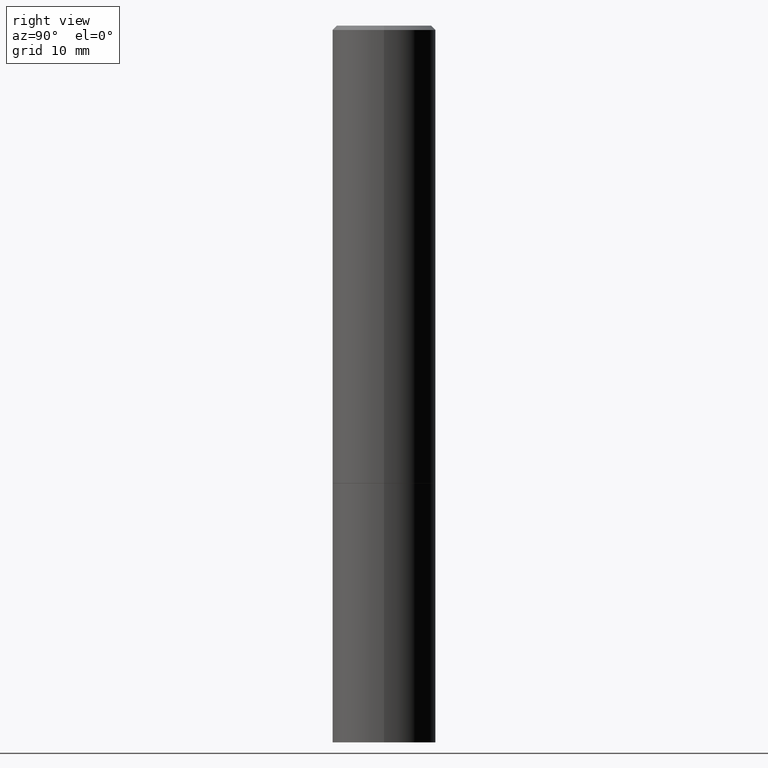
[diagram: clean part render]
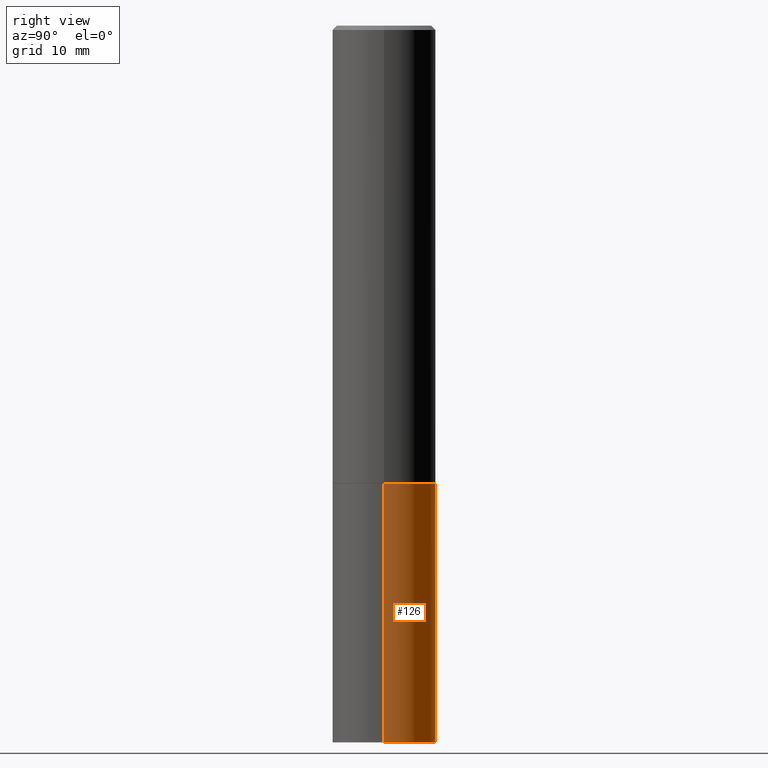
[diagram: same view with one face highlighted and labeled with its STEP entity id]
A machine part, right view. The second image highlights one B-rep face of the part: STEP entity #126.
In plain terms, the highlighted cylindrical surface (partial cylindrical patch) has radius 5.9995 mm, axis along (-0, 0, 1).
Its self-contained STEP definition (entity closure, byte-faithful):
#7 = DIRECTION ( 'NONE',  ( -2.445468806185136597E-29, 3.491481338843145583E-15, 1.000000000000000000 ) ) ;
#16 = EDGE_CURVE ( 'NONE', #168, #110, #140, .T. ) ;
#27 = CIRCLE ( 'NONE', #102, 0.2361999999999999933 ) ;
#38 = CYLINDRICAL_SURFACE ( 'NONE', #323, 0.2361999999999999933 ) ;
#42 = CARTESIAN_POINT ( 'NONE',  ( -0.2361999999999999933, -7.668917324418570534E-15, -3.267700000000000049 ) ) ;
#44 = EDGE_CURVE ( 'NONE', #73, #236, #169, .T. ) ;
#51 = ORIENTED_EDGE ( 'NONE', *, *, #44, .F. ) ;
#60 = CARTESIAN_POINT ( 'NONE',  ( 7.991058417971171713E-29, -1.140911357093774644E-14, -3.267700000000000049 ) ) ;
#64 = CARTESIAN_POINT ( 'NONE',  ( -0.2361999999999999933, 1.678301941865356591E-15, -1.161852468318208757E-29 ) ) ;
#68 = CARTESIAN_POINT ( 'NONE',  ( 5.102715210985906276E-29, -7.285324961630107416E-15, -2.086600000000000232 ) ) ;
#72 = DIRECTION ( 'NONE',  ( 1.000000000000000000, -6.982962677686265133E-15, 0.000000000000000000 ) ) ;
#73 = VERTEX_POINT ( 'NONE', #285 ) ;
#82 = DIRECTION ( 'NONE',  ( -2.445468806185136877E-29, 3.491481338843145188E-15, 1.000000000000000000 ) ) ;
#84 = CARTESIAN_POINT ( 'NONE',  ( -0.2361999999999999933, -7.668917324418570534E-15, -2.086600000000000232 ) ) ;
#87 = ORIENTED_EDGE ( 'NONE', *, *, #150, .T. ) ;
#102 = AXIS2_PLACEMENT_3D ( 'NONE', #68, #241, #247 ) ;
#108 = AXIS2_PLACEMENT_3D ( 'NONE', #60, #7, #72 ) ;
#110 = VERTEX_POINT ( 'NONE', #84 ) ;
#112 = ORIENTED_EDGE ( 'NONE', *, *, #355, .F. ) ;
#126 = ADVANCED_FACE ( 'NONE', ( #343 ), #38, .T. ) ;
#140 = LINE ( 'NONE', #64, #287 ) ;
#150 = EDGE_CURVE ( 'NONE', #73, #168, #256, .T. ) ;
#152 = CARTESIAN_POINT ( 'NONE',  ( 0.000000000000000000, 0.000000000000000000, 0.000000000000000000 ) ) ;
#168 = VERTEX_POINT ( 'NONE', #42 ) ;
#169 = LINE ( 'NONE', #340, #330 ) ;
#226 = DIRECTION ( 'NONE',  ( 1.000000000000000000, -6.982962677686266711E-15, 4.876176775795936353E-29 ) ) ;
#236 = VERTEX_POINT ( 'NONE', #309 ) ;
#241 = DIRECTION ( 'NONE',  ( -2.445468806185136597E-29, 3.491481338843145583E-15, 1.000000000000000000 ) ) ;
#247 = DIRECTION ( 'NONE',  ( 1.000000000000000000, -6.982962677686265133E-15, 0.000000000000000000 ) ) ;
#256 = CIRCLE ( 'NONE', #108, 0.2361999999999999933 ) ;
#272 = DIRECTION ( 'NONE',  ( -2.445468806185136597E-29, 3.491481338843145583E-15, 1.000000000000000000 ) ) ;
#282 = EDGE_LOOP ( 'NONE', ( #87, #297, #112, #51 ) ) ;
#285 = CARTESIAN_POINT ( 'NONE',  ( 0.2361999999999999933, -1.305848935540724297E-14, -3.267700000000000049 ) ) ;
#287 = VECTOR ( 'NONE', #334, 39.37007874015748143 ) ;
#297 = ORIENTED_EDGE ( 'NONE', *, *, #16, .T. ) ;
#309 = CARTESIAN_POINT ( 'NONE',  ( 0.2361999999999999933, -8.934700746099602364E-15, -2.086600000000000232 ) ) ;
#323 = AXIS2_PLACEMENT_3D ( 'NONE', #152, #272, #226 ) ;
#330 = VECTOR ( 'NONE', #82, 39.37007874015748143 ) ;
#334 = DIRECTION ( 'NONE',  ( -2.445468806185136877E-29, 3.491481338843145188E-15, 1.000000000000000000 ) ) ;
#340 = CARTESIAN_POINT ( 'NONE',  ( 0.2361999999999999933, -1.649375784469496131E-15, 1.151752954443000088E-29 ) ) ;
#343 = FACE_OUTER_BOUND ( 'NONE', #282, .T. ) ;
#355 = EDGE_CURVE ( 'NONE', #236, #110, #27, .T. ) ;